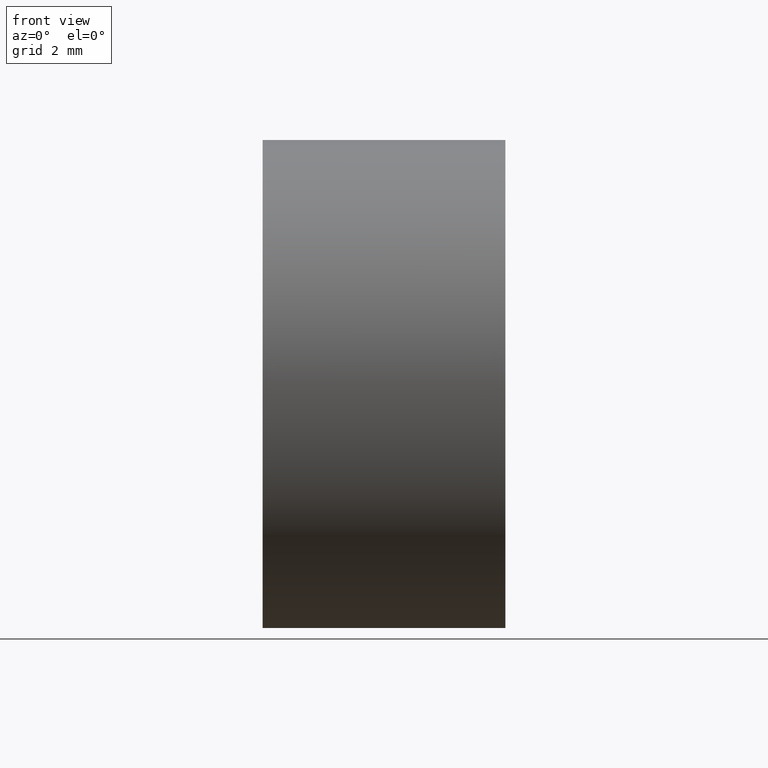
[diagram: clean part render]
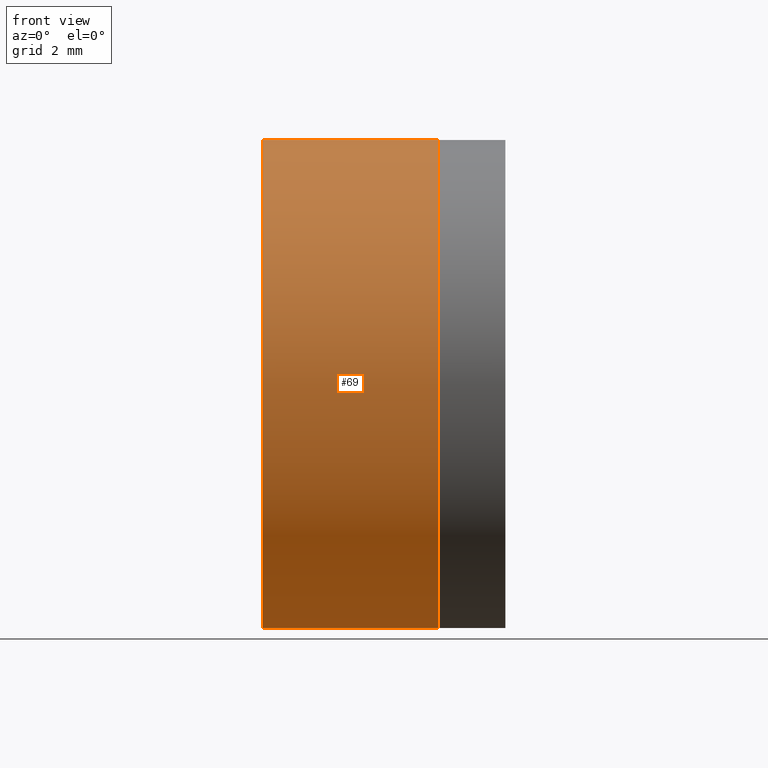
[diagram: same view with one face highlighted and labeled with its STEP entity id]
A machine part, front view. The second image highlights one B-rep face of the part: STEP entity #69.
In plain terms, the highlighted cylindrical surface (partial cylindrical patch) has radius 6.35 mm, axis along (-1, -0, 0).
Its self-contained STEP definition (entity closure, byte-faithful):
#4 = EDGE_LOOP ( 'NONE', ( #119, #29, #185, #110 ) ) ;
#18 = DIRECTION ( 'NONE',  ( 0.0000000000000000000, 0.0000000000000000000, 1.000000000000000000 ) ) ;
#29 = ORIENTED_EDGE ( 'NONE', *, *, #219, .T. ) ;
#38 = EDGE_CURVE ( 'NONE', #311, #126, #304, .T. ) ;
#44 = EDGE_CURVE ( 'NONE', #323, #139, #78, .T. ) ;
#55 = CARTESIAN_POINT ( 'NONE',  ( 228.3139323085608800, 0.0000000000000000000, -4.209049715015568400E-014 ) ) ;
#66 = EDGE_CURVE ( 'NONE', #139, #126, #200, .T. ) ;
#69 = ADVANCED_FACE ( 'NONE', ( #165 ), #83, .T. ) ;
#70 = CARTESIAN_POINT ( 'NONE',  ( 232.8878128593976600, 0.0000000000000000000, -4.293070537659537300E-014 ) ) ;
#78 = LINE ( 'NONE', #142, #343 ) ;
#79 = DIRECTION ( 'NONE',  ( -1.000000000000000000, -0.0000000000000000000, 1.836970198721029700E-016 ) ) ;
#81 = CARTESIAN_POINT ( 'NONE',  ( 232.8878128593976600, 0.0000000000000000000, 6.349999999999999600 ) ) ;
#83 = CYLINDRICAL_SURFACE ( 'NONE', #331, 6.350000000000042300 ) ;
#88 = CARTESIAN_POINT ( 'NONE',  ( 228.3139323085608800, 0.0000000000000000000, 6.349999999999999600 ) ) ;
#110 = ORIENTED_EDGE ( 'NONE', *, *, #66, .F. ) ;
#117 = DIRECTION ( 'NONE',  ( 1.878145495644168500E-016, 0.0000000000000000000, 1.000000000000000000 ) ) ;
#119 = ORIENTED_EDGE ( 'NONE', *, *, #44, .F. ) ;
#126 = VERTEX_POINT ( 'NONE', #88 ) ;
#134 = DIRECTION ( 'NONE',  ( -1.000000000000000000, -0.0000000000000000000, 1.836970198721029700E-016 ) ) ;
#139 = VERTEX_POINT ( 'NONE', #337 ) ;
#142 = CARTESIAN_POINT ( 'NONE',  ( -0.8160621761658051200, 7.776507174585744400E-016, -6.350000000000042300 ) ) ;
#146 = CARTESIAN_POINT ( 'NONE',  ( 232.8878128593976600, 7.776507174585744400E-016, -6.350000000000084900 ) ) ;
#165 = FACE_OUTER_BOUND ( 'NONE', #4, .T. ) ;
#170 = AXIS2_PLACEMENT_3D ( 'NONE', #70, #202, #18 ) ;
#181 = DIRECTION ( 'NONE',  ( 0.0000000000000000000, 0.0000000000000000000, 1.000000000000000000 ) ) ;
#185 = ORIENTED_EDGE ( 'NONE', *, *, #38, .T. ) ;
#197 = DIRECTION ( 'NONE',  ( -1.000000000000000000, -0.0000000000000000000, 1.836970198721029700E-016 ) ) ;
#200 = CIRCLE ( 'NONE', #320, 6.350000000000042300 ) ;
#202 = DIRECTION ( 'NONE',  ( -1.000000000000000000, -0.0000000000000000000, 1.836970198721029700E-016 ) ) ;
#219 = EDGE_CURVE ( 'NONE', #323, #311, #317, .T. ) ;
#230 = CARTESIAN_POINT ( 'NONE',  ( -0.8160621761658027900, 0.0000000000000000000, 6.350000000000042300 ) ) ;
#277 = DIRECTION ( 'NONE',  ( -1.000000000000000000, -0.0000000000000000000, 1.836970198721029700E-016 ) ) ;
#279 = CARTESIAN_POINT ( 'NONE',  ( -0.8160621761658039000, 0.0000000000000000000, 0.0000000000000000000 ) ) ;
#304 = LINE ( 'NONE', #230, #334 ) ;
#311 = VERTEX_POINT ( 'NONE', #81 ) ;
#317 = CIRCLE ( 'NONE', #170, 6.350000000000042300 ) ;
#320 = AXIS2_PLACEMENT_3D ( 'NONE', #55, #134, #181 ) ;
#323 = VERTEX_POINT ( 'NONE', #146 ) ;
#331 = AXIS2_PLACEMENT_3D ( 'NONE', #279, #79, #117 ) ;
#334 = VECTOR ( 'NONE', #277, 1000.000000000000000 ) ;
#337 = CARTESIAN_POINT ( 'NONE',  ( 228.3139323085608800, 7.776507174585744400E-016, -6.350000000000044900 ) ) ;
#343 = VECTOR ( 'NONE', #197, 1000.000000000000000 ) ;